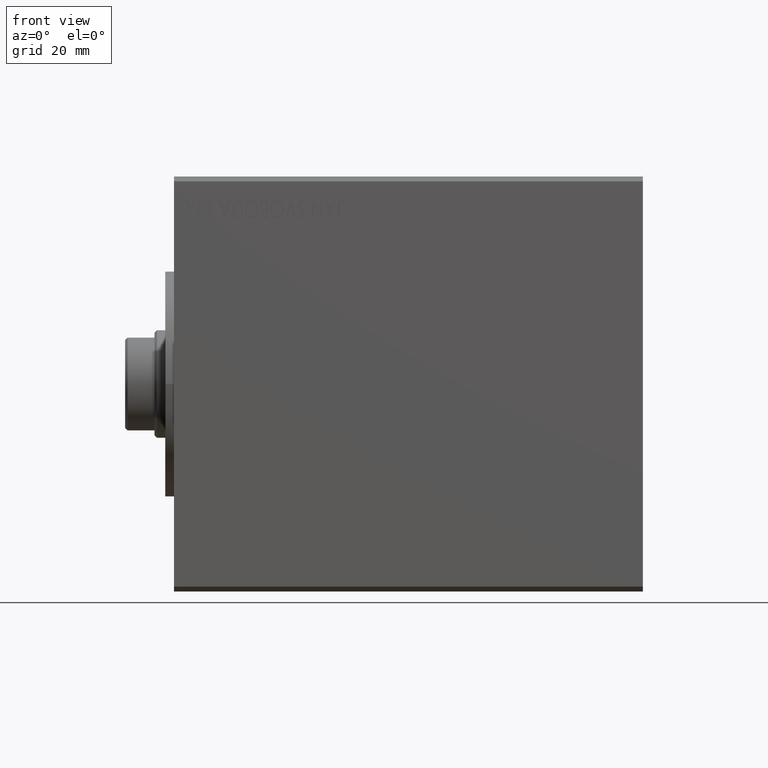
[diagram: clean part render]
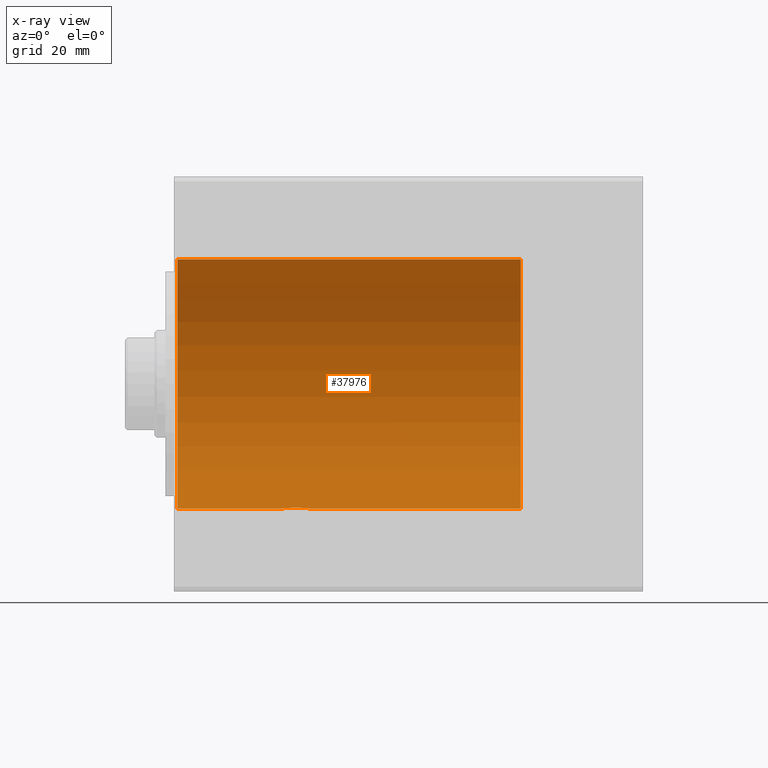
[diagram: x-ray — body ghosted, one internal face saturated and labeled with its STEP entity id]
A machine part, front view, then the same camera in x-ray: the body is ghosted and one INTERNAL B-rep face — a face not visible from any outside direction — is saturated and labeled: STEP entity #37976.
In plain terms, the highlighted cylindrical surface (partial cylindrical patch) has radius 25.5 mm, axis along (-1, -0, -0).
Its self-contained STEP definition (entity closure, byte-faithful):
#19 = CARTESIAN_POINT ( 'NONE',  ( 26.67698317668428132, 2.186849450543036699, -25.40625268806381598 ) ) ;
#1618 = CARTESIAN_POINT ( 'NONE',  ( 24.81948788336331191, 2.749934396358976851, -25.35128913526985883 ) ) ;
#2056 = CARTESIAN_POINT ( 'NONE',  ( 22.52886304344611546, 1.220029612915037642, -25.47134265733709668 ) ) ;
#2221 = DIRECTION ( 'NONE',  ( 0.000000000000000000, 0.000000000000000000, 1.000000000000000000 ) ) ;
#2270 = CARTESIAN_POINT ( 'NONE',  ( 23.18262568589171124, 2.071662962496984672, -25.41602582305861802 ) ) ;
#3331 = VERTEX_POINT ( 'NONE', #37028 ) ;
#4807 = ORIENTED_EDGE ( 'NONE', *, *, #21096, .F. ) ;
#5171 = EDGE_CURVE ( 'NONE', #41619, #29430, #24460, .T. ) ;
#5179 = CARTESIAN_POINT ( 'NONE',  ( 24.64095132154789169, 2.732462580437263533, -25.35320314918266860 ) ) ;
#5399 = CARTESIAN_POINT ( 'NONE',  ( 22.26785831023635254, 0.3606169945932518606, -25.49805656769039786 ) ) ;
#6224 = DIRECTION ( 'NONE',  ( -1.000000000000000000, 0.000000000000000000, 0.000000000000000000 ) ) ;
#8399 = DIRECTION ( 'NONE',  ( -1.000000000000000000, 0.000000000000000000, 0.000000000000000000 ) ) ;
#8405 = CARTESIAN_POINT ( 'NONE',  ( 71.00000000000000000, 3.122849337825750222E-15, -25.50000000000000000 ) ) ;
#8709 = VERTEX_POINT ( 'NONE', #8405 ) ;
#8745 = CARTESIAN_POINT ( 'NONE',  ( 22.25000000000000355, 0.1818411675653288095, -25.50000000000000000 ) ) ;
#8961 = CARTESIAN_POINT ( 'NONE',  ( 22.25000000000000355, -2.448780821755707936E-15, -25.50000000000000000 ) ) ;
#9177 = CARTESIAN_POINT ( 'NONE',  ( 22.39075453199347976, 0.8870333714824056859, -25.48511214065472075 ) ) ;
#9396 = CARTESIAN_POINT ( 'NONE',  ( 27.38545291089384648, 1.379923800465348016, -25.46307233195958020 ) ) ;
#9944 = B_SPLINE_CURVE_WITH_KNOTS ( 'NONE', 3,
 ( #8961, #8745, #5399, #28804, #9177, #2056, #11869, #35477, #25459, #2270, #18546, #15625, #32143, #15847, #29454, #5179, #1618, #18766, #15199, #36564, #19416, #40357, #30546, #19, #43476, #40783, #26543, #9396, #16943, #39911, #16068, #26318, #30116, #43258 ),
 .UNSPECIFIED., .F., .F.,
 ( 4, 2, 2, 2, 2, 2, 2, 2, 2, 2, 2, 2, 2, 2, 2, 2, 4 ),
 ( 2.108338650478277602E-19, 0.0005377504153540445947, 0.001075500830708088756, 0.001613251246062132917, 0.002151001661416176644, 0.002688752076770220371, 0.003226502492124264532, 0.003764252907478308260, 0.004302003322832352421, 0.004839753738186396148, 0.005377504153540440743, 0.005915254568894485337, 0.006453004984248529932, 0.006990755399602574527, 0.007528505814956618254, 0.008066256230310663716, 0.008604006645664706576 ),
 .UNSPECIFIED. ) ;
#11018 = CARTESIAN_POINT ( 'NONE',  ( 71.00000000000000000, 0.000000000000000000, 0.000000000000000000 ) ) ;
#11628 = CARTESIAN_POINT ( 'NONE',  ( 71.00000000000000000, 3.122849337825750222E-15, -25.50000000000000000 ) ) ;
#11860 = CIRCLE ( 'NONE', #23203, 25.50000000000000000 ) ;
#11869 = CARTESIAN_POINT ( 'NONE',  ( 22.61335781514212684, 1.377943378715638545, -25.46318285139502891 ) ) ;
#13578 = VECTOR ( 'NONE', #36294, 1000.000000000000000 ) ;
#13899 = EDGE_CURVE ( 'NONE', #8709, #22819, #24992, .T. ) ;
#14255 = CARTESIAN_POINT ( 'NONE',  ( 22.25000000000000355, -2.448780821755707936E-15, -25.50000000000000000 ) ) ;
#15199 = CARTESIAN_POINT ( 'NONE',  ( 25.36086008472283737, 2.732148236853047862, -25.35323677381548890 ) ) ;
#15218 = ORIENTED_EDGE ( 'NONE', *, *, #13899, .F. ) ;
#15280 = CARTESIAN_POINT ( 'NONE',  ( 0.7000000000000061728, 0.000000000000000000, 0.000000000000000000 ) ) ;
#15625 = CARTESIAN_POINT ( 'NONE',  ( 23.62162587163802385, 2.386478692563835047, -25.38828281995183644 ) ) ;
#15847 = CARTESIAN_POINT ( 'NONE',  ( 24.11241390642286575, 2.608978271227871293, -25.36627648877553298 ) ) ;
#16068 = CARTESIAN_POINT ( 'NONE',  ( 27.66161448425435054, 0.7145913488848054662, -25.49059565528228433 ) ) ;
#16812 = DIRECTION ( 'NONE',  ( 0.000000000000000000, 0.000000000000000000, 1.000000000000000000 ) ) ;
#16943 = CARTESIAN_POINT ( 'NONE',  ( 27.47160053441930572, 1.219090660012198457, -25.47138780348912235 ) ) ;
#18546 = CARTESIAN_POINT ( 'NONE',  ( 23.32100955288382949, 2.185448893543717297, -25.40637711736232518 ) ) ;
#18718 = LINE ( 'NONE', #32312, #13578 ) ;
#18766 = CARTESIAN_POINT ( 'NONE',  ( 25.17850768365840608, 2.750065238390859701, -25.35127494207982224 ) ) ;
#19416 = CARTESIAN_POINT ( 'NONE',  ( 25.88516604857449366, 2.609880391194549620, -25.36618467193966353 ) ) ;
#20938 = EDGE_CURVE ( 'NONE', #3331, #38902, #18718, .T. ) ;
#21045 = DIRECTION ( 'NONE',  ( -1.000000000000000000, -0.000000000000000000, -0.000000000000000000 ) ) ;
#21096 = EDGE_CURVE ( 'NONE', #3331, #8709, #34921, .T. ) ;
#21127 = CARTESIAN_POINT ( 'NONE',  ( 0.7000000000000061728, 3.122849337825750222E-15, -25.50000000000000000 ) ) ;
#22281 = CARTESIAN_POINT ( 'NONE',  ( 71.00000000000000000, 0.000000000000000000, 0.000000000000000000 ) ) ;
#22819 = VERTEX_POINT ( 'NONE', #41719 ) ;
#23203 = AXIS2_PLACEMENT_3D ( 'NONE', #15280, #8399, #29104 ) ;
#23741 = EDGE_CURVE ( 'NONE', #41619, #22819, #9944, .T. ) ;
#24460 = LINE ( 'NONE', #24896, #36668 ) ;
#24696 = ORIENTED_EDGE ( 'NONE', *, *, #5171, .F. ) ;
#24701 = ORIENTED_EDGE ( 'NONE', *, *, #23741, .T. ) ;
#24896 = CARTESIAN_POINT ( 'NONE',  ( 71.00000000000000000, 3.122849337825750222E-15, -25.50000000000000000 ) ) ;
#24992 = LINE ( 'NONE', #11628, #34836 ) ;
#25459 = CARTESIAN_POINT ( 'NONE',  ( 22.92905325125185811, 1.818190416763839634, -25.43541506791175166 ) ) ;
#25555 = DIRECTION ( 'NONE',  ( -1.000000000000000000, -0.000000000000000000, -0.000000000000000000 ) ) ;
#26318 = CARTESIAN_POINT ( 'NONE',  ( 27.73200373899982907, 0.3619226834345130039, -25.49804148612618349 ) ) ;
#26543 = CARTESIAN_POINT ( 'NONE',  ( 27.18632527843339375, 1.677664168439500614, -25.44518982471207380 ) ) ;
#28804 = CARTESIAN_POINT ( 'NONE',  ( 22.33780612522519249, 0.7122967098376428163, -25.49065645963404236 ) ) ;
#29104 = DIRECTION ( 'NONE',  ( 0.000000000000000000, 0.000000000000000000, -1.000000000000000000 ) ) ;
#29430 = VERTEX_POINT ( 'NONE', #21127 ) ;
#29454 = CARTESIAN_POINT ( 'NONE',  ( 24.28587305076607805, 2.661820881908836256, -25.36071708903062927 ) ) ;
#30116 = CARTESIAN_POINT ( 'NONE',  ( 27.75000000000000355, 0.1795439971740326046, -25.50000000000000000 ) ) ;
#30546 = CARTESIAN_POINT ( 'NONE',  ( 26.37914290769451853, 2.385906103428718339, -25.38833271868618979 ) ) ;
#31836 = ORIENTED_EDGE ( 'NONE', *, *, #37728, .T. ) ;
#32143 = CARTESIAN_POINT ( 'NONE',  ( 23.78151623866376596, 2.471815935018339072, -25.38000938747136814 ) ) ;
#32312 = CARTESIAN_POINT ( 'NONE',  ( 71.00000000000000000, 0.000000000000000000, 25.50000000000000000 ) ) ;
#32794 = EDGE_LOOP ( 'NONE', ( #15218, #4807, #37176, #31836, #24696, #24701 ) ) ;
#34836 = VECTOR ( 'NONE', #35238, 1000.000000000000000 ) ;
#34921 = CIRCLE ( 'NONE', #39183, 25.50000000000000000 ) ;
#35238 = DIRECTION ( 'NONE',  ( -1.000000000000000000, -0.000000000000000000, -0.000000000000000000 ) ) ;
#35477 = CARTESIAN_POINT ( 'NONE',  ( 22.81296132095586415, 1.676797748643019004, -25.44525020880458044 ) ) ;
#36054 = AXIS2_PLACEMENT_3D ( 'NONE', #11018, #21045, #16812 ) ;
#36294 = DIRECTION ( 'NONE',  ( -1.000000000000000000, -0.000000000000000000, -0.000000000000000000 ) ) ;
#36564 = CARTESIAN_POINT ( 'NONE',  ( 25.71367200088800331, 2.661865185172587189, -25.36071218702769059 ) ) ;
#36668 = VECTOR ( 'NONE', #25555, 1000.000000000000000 ) ;
#37028 = CARTESIAN_POINT ( 'NONE',  ( 71.00000000000000000, 0.000000000000000000, 25.50000000000000000 ) ) ;
#37176 = ORIENTED_EDGE ( 'NONE', *, *, #20938, .T. ) ;
#37728 = EDGE_CURVE ( 'NONE', #38902, #29430, #11860, .T. ) ;
#37976 = ADVANCED_FACE ( 'NONE', ( #41307 ), #41532, .F. ) ;
#38854 = CARTESIAN_POINT ( 'NONE',  ( 0.7000000000000061728, 0.000000000000000000, 25.50000000000000000 ) ) ;
#38902 = VERTEX_POINT ( 'NONE', #38854 ) ;
#39183 = AXIS2_PLACEMENT_3D ( 'NONE', #22281, #6224, #2221 ) ;
#39911 = CARTESIAN_POINT ( 'NONE',  ( 27.60958451957658255, 0.8860360456872165003, -25.48514702329194748 ) ) ;
#40357 = CARTESIAN_POINT ( 'NONE',  ( 26.21828336580080787, 2.471999237561341989, -25.37999251845406334 ) ) ;
#40783 = CARTESIAN_POINT ( 'NONE',  ( 27.07265318460155257, 1.816470127182207017, -25.43554610187512210 ) ) ;
#41307 = FACE_OUTER_BOUND ( 'NONE', #32794, .T. ) ;
#41532 = CYLINDRICAL_SURFACE ( 'NONE', #36054, 25.50000000000000000 ) ;
#41619 = VERTEX_POINT ( 'NONE', #14255 ) ;
#41719 = CARTESIAN_POINT ( 'NONE',  ( 27.75000000000000000, 3.122849312623505223E-15, -25.50000000000000000 ) ) ;
#43258 = CARTESIAN_POINT ( 'NONE',  ( 27.75000000000000000, 3.122849312623505223E-15, -25.50000000000000000 ) ) ;
#43476 = CARTESIAN_POINT ( 'NONE',  ( 26.81588791203203215, 2.073163292536370328, -25.41591161430256562 ) ) ;